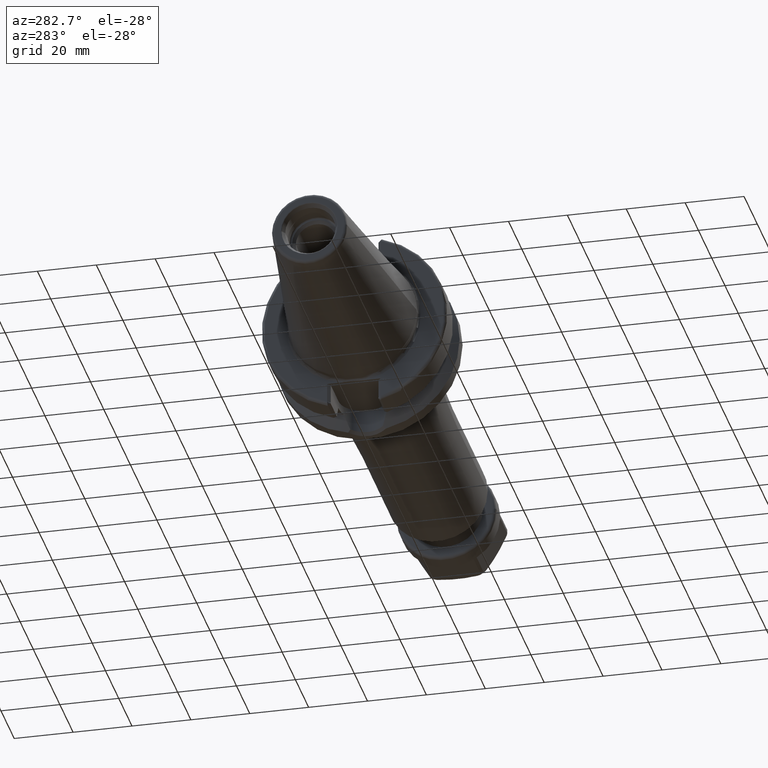
[diagram: clean part render]
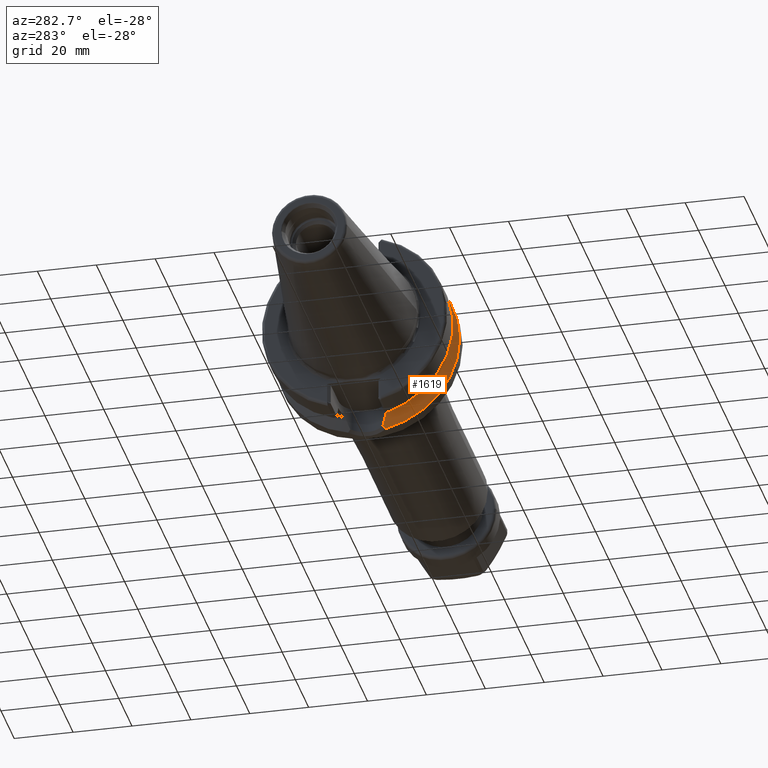
[diagram: same view with one face highlighted and labeled with its STEP entity id]
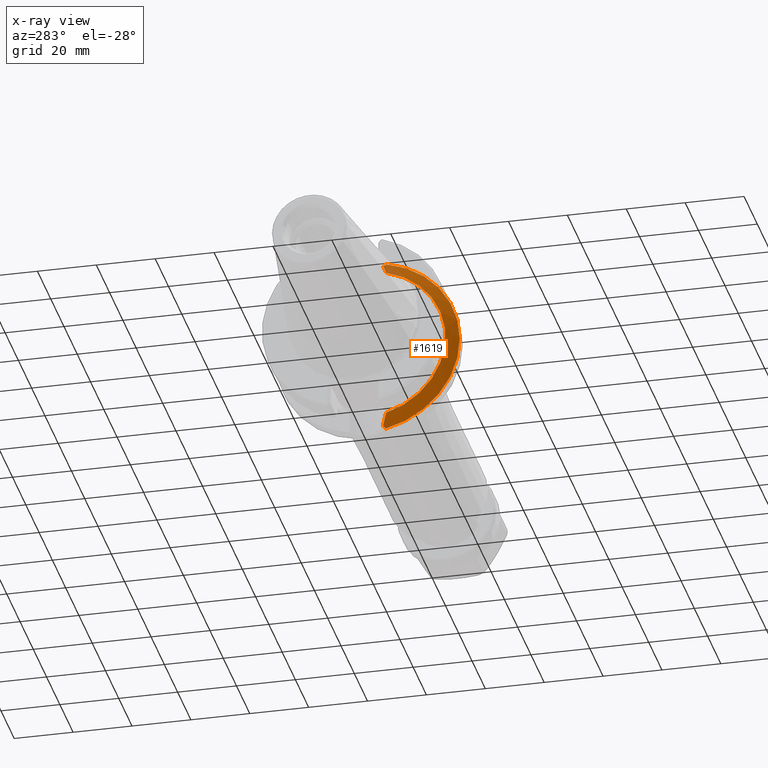
[diagram: x-ray of the same camera — body ghosted, the highlighted face saturated]
A machine part, auxiliary view. The second image highlights one B-rep face of the part: STEP entity #1619.
The next image is the same camera in x-ray: the body ghosted, the highlighted face saturated — about 4% of this face is hidden behind the body in this view.
In plain terms, the highlighted conical surface has half-angle 60 deg.
Its self-contained STEP definition (entity closure, byte-faithful):
#42=CARTESIAN_POINT('',(2.162727746897E1,0.E0,0.E0));
#43=DIRECTION('',(1.E0,0.E0,0.E0));
#44=DIRECTION('',(0.E0,-2.095835969751E-1,9.777907321503E-1));
#45=AXIS2_PLACEMENT_3D('',#42,#43,#44);
#66=CARTESIAN_POINT('',(1.91375E1,0.E0,0.E0));
#67=DIRECTION('',(-1.E0,0.E0,0.E0));
#68=DIRECTION('',(0.E0,-2.593406914876E-1,-9.657859005694E-1));
#69=AXIS2_PLACEMENT_3D('',#66,#67,#68);
#185=CARTESIAN_POINT('',(2.162727746897E1,0.E0,0.E0));
#186=DIRECTION('',(1.E0,0.E0,0.E0));
#187=DIRECTION('',(0.E0,-1.E0,0.E0));
#188=AXIS2_PLACEMENT_3D('',#185,#186,#187);
#281=CARTESIAN_POINT('',(2.105861410330E1,-5.538624876202E0,-2.999548227013E1));
#282=CARTESIAN_POINT('',(2.093797596673E1,-5.667212931971E0,-2.975925502394E1));
#283=CARTESIAN_POINT('',(2.069265782077E1,-5.911926204526E0,-2.927912632192E1));
#284=CARTESIAN_POINT('',(2.031281915354E1,-6.245686951976E0,-2.853656269645E1));
#285=CARTESIAN_POINT('',(1.992518154069E1,-6.546159346979E0,-2.777970817700E1));
#286=CARTESIAN_POINT('',(1.953227047098E1,-6.814802578335E0,-2.701362543231E1));
#287=CARTESIAN_POINT('',(1.926930512179E1,-6.973122571862E0,-2.650168908776E1));
#288=CARTESIAN_POINT('',(1.91375E1,-7.047603759435E0,-2.624530807186E1));
#341=CARTESIAN_POINT('',(2.162727746897E1,-6.376922817779E0,-3.083500464774E1));
#342=CARTESIAN_POINT('',(2.156218909379E1,-6.282140745244E0,-3.073948435803E1));
#343=CARTESIAN_POINT('',(2.143328374119E1,-6.093677896303E0,-3.054993954761E1));
#344=CARTESIAN_POINT('',(2.124372162968E1,-5.814243469633E0,-3.027008547410E1));
#345=CARTESIAN_POINT('',(2.111989421200E1,-5.630139092100E0,-3.008651882343E1));
#346=CARTESIAN_POINT('',(2.105861410330E1,-5.538624876202E0,-2.999548227013E1));
#548=CARTESIAN_POINT('',(1.91375E1,-7.047603759435E0,2.624530807186E1));
#549=CARTESIAN_POINT('',(1.929439846909E1,-6.958942680509E0,2.655049946618E1));
#550=CARTESIAN_POINT('',(1.960708097731E1,-6.768483112184E0,2.715932176805E1));
#551=CARTESIAN_POINT('',(2.007318172595E1,-6.438434899025E0,2.806848574420E1));
#552=CARTESIAN_POINT('',(2.053077179900E1,-6.062239171320E0,2.896247872395E1));
#553=CARTESIAN_POINT('',(2.082597009394E1,-5.780364268794E0,2.954002310797E1));
#554=CARTESIAN_POINT('',(2.097101986641E1,-5.630536201239E0,2.982398115757E1));
#1059=CARTESIAN_POINT('',(2.097101986641E1,-5.630536201239E0,2.982398115757E1));
#1060=CARTESIAN_POINT('',(2.104137563571E1,-5.736016200038E0,2.992807979955E1));
#1061=CARTESIAN_POINT('',(2.118379229094E1,-5.948393440019E0,3.013829960430E1));
#1062=CARTESIAN_POINT('',(2.140255866426E1,-6.271300885570E0,3.045972523365E1));
#1063=CARTESIAN_POINT('',(2.155180188305E1,-6.489453954811E0,3.067802584122E1));
#1064=CARTESIAN_POINT('',(2.162727746897E1,-6.599263509754E0,3.078818567858E1));
#1290=CARTESIAN_POINT('',(1.91375E1,-7.047603759435E0,-2.624530807186E1));
#1291=CARTESIAN_POINT('',(1.91375E1,-7.047603759435E0,2.624530807186E1));
#1292=VERTEX_POINT('',#1290);
#1293=VERTEX_POINT('',#1291);
#1306=CARTESIAN_POINT('',(2.162727746897E1,-3.14875E1,0.E0));
#1307=CARTESIAN_POINT('',(2.162727746897E1,-6.376922817779E0,
-3.083500464774E1));
#1308=VERTEX_POINT('',#1306);
#1309=VERTEX_POINT('',#1307);
#1314=CARTESIAN_POINT('',(2.162727746897E1,-6.599263509754E0,3.078818567858E1));
#1315=VERTEX_POINT('',#1314);
#1406=VERTEX_POINT('',#554);
#1414=VERTEX_POINT('',#281);
#1599=CARTESIAN_POINT('',(2.038238873448E1,0.E0,0.E0));
#1600=DIRECTION('',(1.E0,0.E0,0.E0));
#1601=DIRECTION('',(0.E0,-1.E0,0.E0));
#1602=AXIS2_PLACEMENT_3D('',#1599,#1600,#1601);
#1603=CONICAL_SURFACE('',#1602,2.933128946210E1,6.E1);
#1604=ORIENTED_EDGE('',*,*,#1571,.T.);
#1606=ORIENTED_EDGE('',*,*,#1605,.T.);
#1608=ORIENTED_EDGE('',*,*,#1607,.T.);
#1610=ORIENTED_EDGE('',*,*,#1609,.T.);
#1612=ORIENTED_EDGE('',*,*,#1611,.T.);
#1614=ORIENTED_EDGE('',*,*,#1613,.T.);
#1616=ORIENTED_EDGE('',*,*,#1615,.T.);
#1617=EDGE_LOOP('',(#1604,#1606,#1608,#1610,#1612,#1614,#1616));
#1618=FACE_OUTER_BOUND('',#1617,.F.);
#1619=ADVANCED_FACE('',(#1618),#1603,.T.);
#46=CIRCLE('',#45,3.14875E1);
#70=CIRCLE('',#69,2.717507892421E1);
#189=CIRCLE('',#188,3.14875E1);
#289=B_SPLINE_CURVE_WITH_KNOTS('',3,(#281,#282,#283,#284,#285,#286,#287,#288),
.UNSPECIFIED.,.F.,.F.,(4,1,1,1,1,4),(0.E0,2.E-1,4.E-1,6.E-1,8.E-1,1.E0),
.UNSPECIFIED.);
#347=B_SPLINE_CURVE_WITH_KNOTS('',3,(#341,#342,#343,#344,#345,#346),
.UNSPECIFIED.,.F.,.F.,(4,1,1,4),(0.E0,3.333333333333E-1,6.666666666667E-1,1.E0),
.UNSPECIFIED.);
#555=B_SPLINE_CURVE_WITH_KNOTS('',3,(#548,#549,#550,#551,#552,#553,#554),
.UNSPECIFIED.,.F.,.F.,(4,1,1,1,4),(0.E0,2.5E-1,5.E-1,7.5E-1,1.E0),
.UNSPECIFIED.);
#1065=B_SPLINE_CURVE_WITH_KNOTS('',3,(#1059,#1060,#1061,#1062,#1063,#1064),
.UNSPECIFIED.,.F.,.F.,(4,1,1,4),(0.E0,3.333333333333E-1,6.666666666667E-1,1.E0),
.UNSPECIFIED.);
#1571=EDGE_CURVE('',#1315,#1308,#46,.T.);
#1605=EDGE_CURVE('',#1308,#1309,#189,.T.);
#1607=EDGE_CURVE('',#1309,#1414,#347,.T.);
#1609=EDGE_CURVE('',#1414,#1292,#289,.T.);
#1611=EDGE_CURVE('',#1292,#1293,#70,.T.);
#1613=EDGE_CURVE('',#1293,#1406,#555,.T.);
#1615=EDGE_CURVE('',#1406,#1315,#1065,.T.);